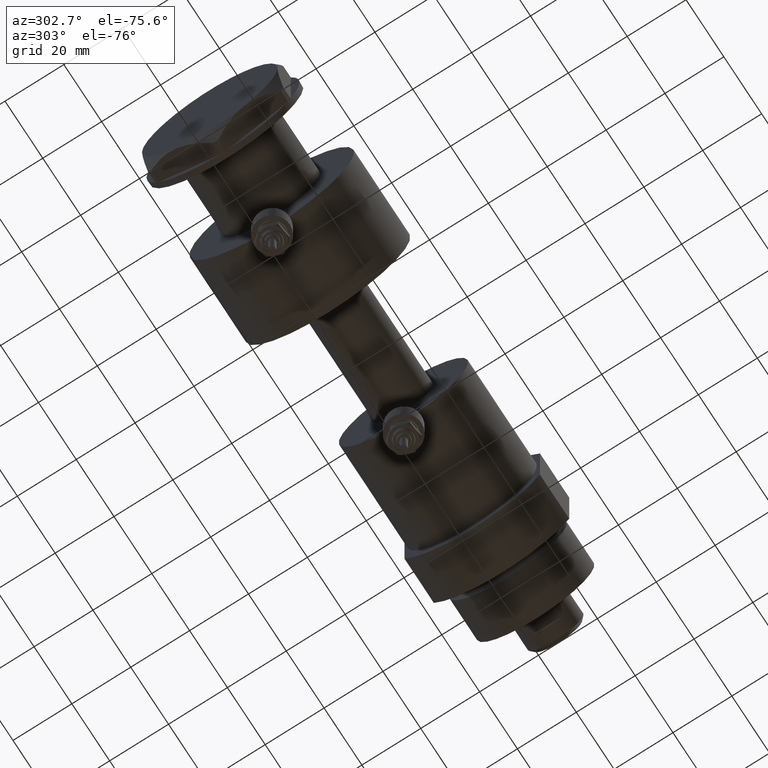
[diagram: clean part render]
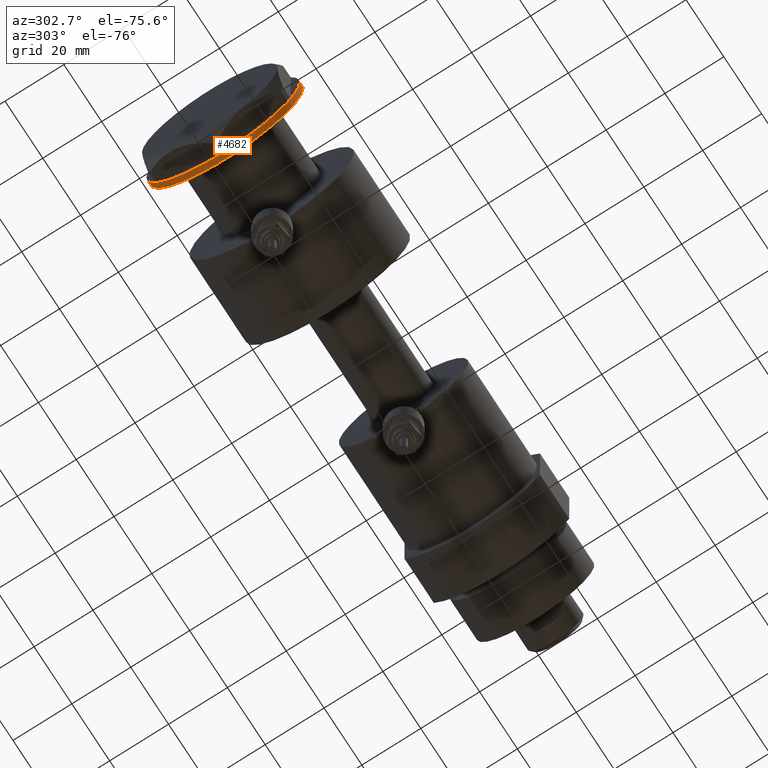
[diagram: same view with one face highlighted and labeled with its STEP entity id]
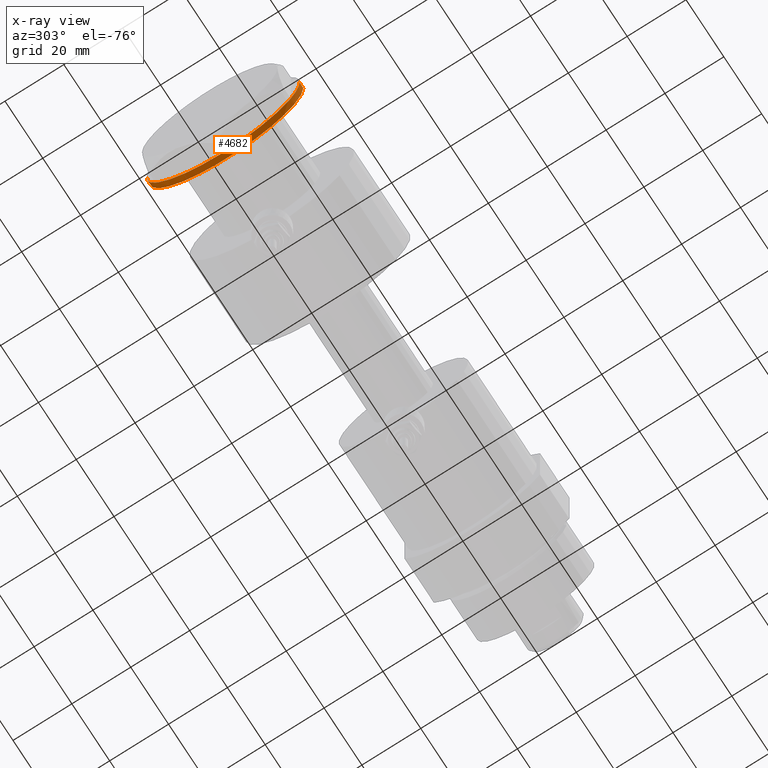
[diagram: x-ray of the same camera — body ghosted, the highlighted face saturated]
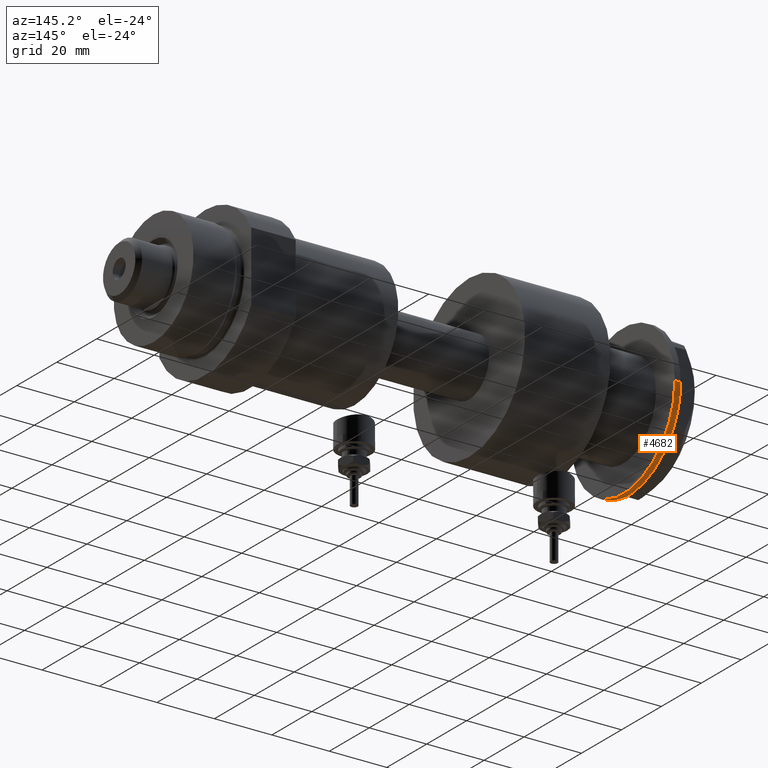
[diagram: same view with one face highlighted and labeled with its STEP entity id]
A machine part, auxiliary view. The second image highlights one B-rep face of the part: STEP entity #4682.
The next image is the same camera in x-ray: the body ghosted, the highlighted face saturated — about 0% of this face is hidden behind the body in this view.
A second angle (auxiliary view) of the same face is appended — the face is thin or edge-on in the first view.
In plain terms, the highlighted cylindrical surface (partial cylindrical patch) has radius 26 mm, axis along (-1, -0, 0).
Its self-contained STEP definition (entity closure, byte-faithful):
#25 = EDGE_CURVE ( 'NONE', #1889, #3312, #2389, .T. ) ;
#57 = CARTESIAN_POINT ( 'NONE',  ( 22.56942594318081063, 12.90986591935732442, 0.000000000000000000 ) ) ;
#61 = DIRECTION ( 'NONE',  ( -1.000000000000000000, 0.000000000000000000, 0.000000000000000000 ) ) ;
#151 = FACE_OUTER_BOUND ( 'NONE', #932, .T. ) ;
#178 = DIRECTION ( 'NONE',  ( 0.000000000000000000, 0.000000000000000000, -1.000000000000000000 ) ) ;
#201 = ORIENTED_EDGE ( 'NONE', *, *, #4127, .T. ) ;
#214 = CARTESIAN_POINT ( 'NONE',  ( 26.00000000000000355, 0.000000000000000000, 0.000000000000000000 ) ) ;
#220 = DIRECTION ( 'NONE',  ( 0.000000000000000000, 0.000000000000000000, -1.000000000000000000 ) ) ;
#248 = AXIS2_PLACEMENT_3D ( 'NONE', #3297, #4860, #1041 ) ;
#285 = DIRECTION ( 'NONE',  ( 0.000000000000000000, 0.000000000000000000, -1.000000000000000000 ) ) ;
#357 = VERTEX_POINT ( 'NONE', #214 ) ;
#379 = CARTESIAN_POINT ( 'NONE',  ( -22.99999999999999289, 12.12435565298215856, 0.000000000000000000 ) ) ;
#410 = EDGE_CURVE ( 'NONE', #2438, #357, #894, .T. ) ;
#466 = EDGE_CURVE ( 'NONE', #2988, #4886, #3332, .T. ) ;
#523 = VERTEX_POINT ( 'NONE', #1468 ) ;
#605 = DIRECTION ( 'NONE',  ( -1.000000000000000000, 0.000000000000000000, 0.000000000000000000 ) ) ;
#639 = DIRECTION ( 'NONE',  ( 0.000000000000000000, 0.000000000000000000, -1.000000000000000000 ) ) ;
#804 = CARTESIAN_POINT ( 'NONE',  ( -0.3132930502240048320, 25.99811238272273783, 0.000000000000000000 ) ) ;
#877 = ORIENTED_EDGE ( 'NONE', *, *, #3717, .T. ) ;
#894 = CIRCLE ( 'NONE', #5044, 26.00000000000000355 ) ;
#932 = EDGE_LOOP ( 'NONE', ( #2900, #1094, #4493, #3663, #877, #3729, #3853, #4431, #2490, #4156, #3003, #201, #4442, #3745, #2974, #1471 ) ) ;
#1008 = VERTEX_POINT ( 'NONE', #4181 ) ;
#1041 = DIRECTION ( 'NONE',  ( -1.000000000000000000, 0.000000000000000000, 0.000000000000000000 ) ) ;
#1043 = DIRECTION ( 'NONE',  ( -1.000000000000000000, 0.000000000000000000, 0.000000000000000000 ) ) ;
#1094 = ORIENTED_EDGE ( 'NONE', *, *, #2689, .T. ) ;
#1145 = DIRECTION ( 'NONE',  ( 0.000000000000000000, 0.000000000000000000, -1.000000000000000000 ) ) ;
#1153 = CARTESIAN_POINT ( 'NONE',  ( 0.000000000000000000, 0.000000000000000000, 0.000000000000000000 ) ) ;
#1177 = CARTESIAN_POINT ( 'NONE',  ( 26.00000000000000355, 0.000000000000000000, -2.000000000000000000 ) ) ;
#1222 = AXIS2_PLACEMENT_3D ( 'NONE', #3040, #1145, #4197 ) ;
#1337 = AXIS2_PLACEMENT_3D ( 'NONE', #2907, #1743, #2500 ) ;
#1394 = AXIS2_PLACEMENT_3D ( 'NONE', #3733, #220, #2171 ) ;
#1430 = CIRCLE ( 'NONE', #2384, 26.00000000000000355 ) ;
#1468 = CARTESIAN_POINT ( 'NONE',  ( -26.00000000000000355, 3.184081677783118585E-15, 0.000000000000000000 ) ) ;
#1471 = ORIENTED_EDGE ( 'NONE', *, *, #4042, .F. ) ;
#1661 = CIRCLE ( 'NONE', #3046, 26.00000000000000355 ) ;
#1743 = DIRECTION ( 'NONE',  ( 0.000000000000000000, 0.000000000000000000, -1.000000000000000000 ) ) ;
#1744 = VERTEX_POINT ( 'NONE', #1810 ) ;
#1810 = CARTESIAN_POINT ( 'NONE',  ( 0.3132930502238189252, 25.99811238272274139, 0.000000000000000000 ) ) ;
#1845 = EDGE_CURVE ( 'NONE', #3312, #2438, #2849, .T. ) ;
#1889 = VERTEX_POINT ( 'NONE', #2314 ) ;
#1910 = CARTESIAN_POINT ( 'NONE',  ( -22.67167229899245839, 12.72773645103865370, 0.000000000000000000 ) ) ;
#1948 = CARTESIAN_POINT ( 'NONE',  ( -0.3132930502240048320, 25.99811238272273783, 0.000000000000000000 ) ) ;
#1978 = CARTESIAN_POINT ( 'NONE',  ( -22.35837924876889460, 13.27037593168409835, 0.000000000000000000 ) ) ;
#1983 = VECTOR ( 'NONE', #3889, 1000.000000000000000 ) ;
#2117 = VECTOR ( 'NONE', #4226, 1000.000000000000000 ) ;
#2128 = DIRECTION ( 'NONE',  ( -0.000000000000000000, -0.000000000000000000, 1.000000000000000000 ) ) ;
#2171 = DIRECTION ( 'NONE',  ( -1.000000000000000000, 0.000000000000000000, 0.000000000000000000 ) ) ;
#2220 = EDGE_CURVE ( 'NONE', #4834, #1744, #2297, .T. ) ;
#2229 = AXIS2_PLACEMENT_3D ( 'NONE', #4187, #2667, #2950 ) ;
#2297 = B_SPLINE_CURVE_WITH_KNOTS ( 'NONE', 3,
 ( #1948, #4284, #3076, #3865 ),
 .UNSPECIFIED., .F., .F.,
 ( 4, 4 ),
 ( 0.000000000000000000, 1.000000000000000000 ),
 .UNSPECIFIED. ) ;
#2314 = CARTESIAN_POINT ( 'NONE',  ( 22.35837924876909710, 13.27037593168376084, 0.000000000000000000 ) ) ;
#2343 = CARTESIAN_POINT ( 'NONE',  ( 22.46498481720466245, 13.09076325594771006, 0.000000000000000000 ) ) ;
#2380 = CARTESIAN_POINT ( 'NONE',  ( 21.99999999999987210, 13.85640646055121827, 0.000000000000000000 ) ) ;
#2384 = AXIS2_PLACEMENT_3D ( 'NONE', #1153, #285, #3054 ) ;
#2389 = B_SPLINE_CURVE_WITH_KNOTS ( 'NONE', 3,
 ( #3094, #2343, #57, #3571 ),
 .UNSPECIFIED., .F., .F.,
 ( 4, 4 ),
 ( 0.000000000000000000, 1.000000000000000000 ),
 .UNSPECIFIED. ) ;
#2394 = DIRECTION ( 'NONE',  ( 0.000000000000000000, 0.000000000000000000, -1.000000000000000000 ) ) ;
#2411 = VERTEX_POINT ( 'NONE', #3536 ) ;
#2438 = VERTEX_POINT ( 'NONE', #3604 ) ;
#2490 = ORIENTED_EDGE ( 'NONE', *, *, #2220, .T. ) ;
#2500 = DIRECTION ( 'NONE',  ( -1.000000000000000000, 0.000000000000000000, 0.000000000000000000 ) ) ;
#2516 = CARTESIAN_POINT ( 'NONE',  ( 0.000000000000000000, 0.000000000000000000, 0.000000000000000000 ) ) ;
#2548 = CARTESIAN_POINT ( 'NONE',  ( -26.00000000000000355, 3.184081677783118585E-15, -2.000000000000000000 ) ) ;
#2588 = EDGE_CURVE ( 'NONE', #523, #4050, #3512, .T. ) ;
#2667 = DIRECTION ( 'NONE',  ( 0.000000000000000000, 0.000000000000000000, -1.000000000000000000 ) ) ;
#2689 = EDGE_CURVE ( 'NONE', #2988, #523, #3457, .T. ) ;
#2704 = CARTESIAN_POINT ( 'NONE',  ( -0.9999999999999089617, 25.98076211353316367, 0.000000000000000000 ) ) ;
#2705 = AXIS2_PLACEMENT_3D ( 'NONE', #4286, #2394, #61 ) ;
#2709 = CARTESIAN_POINT ( 'NONE',  ( -22.00000000000008171, 13.85640646055089498, 0.000000000000000000 ) ) ;
#2792 = VERTEX_POINT ( 'NONE', #2709 ) ;
#2849 = CIRCLE ( 'NONE', #4244, 26.00000000000000355 ) ;
#2869 = EDGE_CURVE ( 'NONE', #4050, #2411, #4268, .T. ) ;
#2900 = ORIENTED_EDGE ( 'NONE', *, *, #466, .F. ) ;
#2907 = CARTESIAN_POINT ( 'NONE',  ( 0.000000000000000000, 0.000000000000000000, 0.000000000000000000 ) ) ;
#2950 = DIRECTION ( 'NONE',  ( -1.000000000000000000, 0.000000000000000000, 0.000000000000000000 ) ) ;
#2969 = AXIS2_PLACEMENT_3D ( 'NONE', #4422, #2128, #4495 ) ;
#2974 = ORIENTED_EDGE ( 'NONE', *, *, #410, .T. ) ;
#2988 = VERTEX_POINT ( 'NONE', #2548 ) ;
#3003 = ORIENTED_EDGE ( 'NONE', *, *, #4071, .T. ) ;
#3036 = EDGE_CURVE ( 'NONE', #2792, #4425, #4018, .T. ) ;
#3040 = CARTESIAN_POINT ( 'NONE',  ( 0.000000000000000000, 0.000000000000000000, -2.000000000000000000 ) ) ;
#3046 = AXIS2_PLACEMENT_3D ( 'NONE', #2516, #4029, #3231 ) ;
#3054 = DIRECTION ( 'NONE',  ( -1.000000000000000000, 0.000000000000000000, 0.000000000000000000 ) ) ;
#3076 = CARTESIAN_POINT ( 'NONE',  ( 0.1044411259763403238, 26.00062917530480888, 0.000000000000000000 ) ) ;
#3094 = CARTESIAN_POINT ( 'NONE',  ( 22.35837924876909710, 13.27037593168376084, 0.000000000000000000 ) ) ;
#3127 = EDGE_CURVE ( 'NONE', #1008, #2792, #4820, .T. ) ;
#3211 = CARTESIAN_POINT ( 'NONE',  ( 0.9999999999999297229, 25.98076211353316722, 0.000000000000000000 ) ) ;
#3231 = DIRECTION ( 'NONE',  ( -1.000000000000000000, 0.000000000000000000, 0.000000000000000000 ) ) ;
#3297 = CARTESIAN_POINT ( 'NONE',  ( 0.000000000000000000, 0.000000000000000000, 0.000000000000000000 ) ) ;
#3312 = VERTEX_POINT ( 'NONE', #3494 ) ;
#3326 = B_SPLINE_CURVE_WITH_KNOTS ( 'NONE', 3,
 ( #1910, #3950, #3468, #1978 ),
 .UNSPECIFIED., .F., .F.,
 ( 4, 4 ),
 ( 0.000000000000000000, 1.000000000000000000 ),
 .UNSPECIFIED. ) ;
#3332 = CIRCLE ( 'NONE', #1222, 26.00000000000000355 ) ;
#3457 = LINE ( 'NONE', #5013, #2117 ) ;
#3458 = LINE ( 'NONE', #1177, #1983 ) ;
#3468 = CARTESIAN_POINT ( 'NONE',  ( -22.46498481720463758, 13.09076325594775092, 0.000000000000000000 ) ) ;
#3494 = CARTESIAN_POINT ( 'NONE',  ( 22.67167229899214220, 12.72773645103922036, 0.000000000000000000 ) ) ;
#3496 = EDGE_CURVE ( 'NONE', #4425, #4834, #4025, .T. ) ;
#3512 = CIRCLE ( 'NONE', #1394, 26.00000000000000355 ) ;
#3536 = CARTESIAN_POINT ( 'NONE',  ( -22.67167229899245839, 12.72773645103865370, 0.000000000000000000 ) ) ;
#3571 = CARTESIAN_POINT ( 'NONE',  ( 22.67167229899214220, 12.72773645103922036, 0.000000000000000000 ) ) ;
#3604 = CARTESIAN_POINT ( 'NONE',  ( 22.99999999999982592, 12.12435565298247653, 0.000000000000000000 ) ) ;
#3663 = ORIENTED_EDGE ( 'NONE', *, *, #2869, .T. ) ;
#3669 = CARTESIAN_POINT ( 'NONE',  ( 0.000000000000000000, 0.000000000000000000, 0.000000000000000000 ) ) ;
#3717 = EDGE_CURVE ( 'NONE', #2411, #1008, #3326, .T. ) ;
#3729 = ORIENTED_EDGE ( 'NONE', *, *, #3127, .T. ) ;
#3733 = CARTESIAN_POINT ( 'NONE',  ( 0.000000000000000000, 0.000000000000000000, 0.000000000000000000 ) ) ;
#3745 = ORIENTED_EDGE ( 'NONE', *, *, #1845, .T. ) ;
#3768 = VERTEX_POINT ( 'NONE', #2380 ) ;
#3775 = DIRECTION ( 'NONE',  ( -1.000000000000000000, 0.000000000000000000, 0.000000000000000000 ) ) ;
#3804 = DIRECTION ( 'NONE',  ( 0.000000000000000000, 0.000000000000000000, -1.000000000000000000 ) ) ;
#3853 = ORIENTED_EDGE ( 'NONE', *, *, #3036, .T. ) ;
#3863 = CIRCLE ( 'NONE', #2229, 26.00000000000000355 ) ;
#3865 = CARTESIAN_POINT ( 'NONE',  ( 0.3132930502238189252, 25.99811238272274139, 0.000000000000000000 ) ) ;
#3889 = DIRECTION ( 'NONE',  ( -0.000000000000000000, -0.000000000000000000, 1.000000000000000000 ) ) ;
#3943 = EDGE_CURVE ( 'NONE', #1744, #4391, #1661, .T. ) ;
#3950 = CARTESIAN_POINT ( 'NONE',  ( -22.56942594318095630, 12.90986591935706329, 0.000000000000000000 ) ) ;
#4018 = CIRCLE ( 'NONE', #1337, 26.00000000000000355 ) ;
#4025 = CIRCLE ( 'NONE', #4114, 26.00000000000000355 ) ;
#4029 = DIRECTION ( 'NONE',  ( 0.000000000000000000, 0.000000000000000000, -1.000000000000000000 ) ) ;
#4042 = EDGE_CURVE ( 'NONE', #4886, #357, #3458, .T. ) ;
#4050 = VERTEX_POINT ( 'NONE', #379 ) ;
#4071 = EDGE_CURVE ( 'NONE', #4391, #3768, #1430, .T. ) ;
#4114 = AXIS2_PLACEMENT_3D ( 'NONE', #3669, #178, #605 ) ;
#4127 = EDGE_CURVE ( 'NONE', #3768, #1889, #3863, .T. ) ;
#4156 = ORIENTED_EDGE ( 'NONE', *, *, #3943, .T. ) ;
#4181 = CARTESIAN_POINT ( 'NONE',  ( -22.35837924876889460, 13.27037593168409835, 0.000000000000000000 ) ) ;
#4187 = CARTESIAN_POINT ( 'NONE',  ( 0.000000000000000000, 0.000000000000000000, 0.000000000000000000 ) ) ;
#4197 = DIRECTION ( 'NONE',  ( -1.000000000000000000, 0.000000000000000000, 0.000000000000000000 ) ) ;
#4226 = DIRECTION ( 'NONE',  ( -0.000000000000000000, -0.000000000000000000, 1.000000000000000000 ) ) ;
#4244 = AXIS2_PLACEMENT_3D ( 'NONE', #4598, #3804, #3775 ) ;
#4268 = CIRCLE ( 'NONE', #2705, 26.00000000000000355 ) ;
#4284 = CARTESIAN_POINT ( 'NONE',  ( -0.1044411259765276462, 26.00062917530480888, 0.000000000000000000 ) ) ;
#4286 = CARTESIAN_POINT ( 'NONE',  ( 0.000000000000000000, 0.000000000000000000, 0.000000000000000000 ) ) ;
#4324 = CARTESIAN_POINT ( 'NONE',  ( 26.00000000000000355, 0.000000000000000000, -2.000000000000000000 ) ) ;
#4391 = VERTEX_POINT ( 'NONE', #3211 ) ;
#4422 = CARTESIAN_POINT ( 'NONE',  ( 0.000000000000000000, 0.000000000000000000, -2.000000000000000000 ) ) ;
#4425 = VERTEX_POINT ( 'NONE', #2704 ) ;
#4431 = ORIENTED_EDGE ( 'NONE', *, *, #3496, .T. ) ;
#4432 = CARTESIAN_POINT ( 'NONE',  ( 0.000000000000000000, 0.000000000000000000, 0.000000000000000000 ) ) ;
#4442 = ORIENTED_EDGE ( 'NONE', *, *, #25, .T. ) ;
#4493 = ORIENTED_EDGE ( 'NONE', *, *, #2588, .T. ) ;
#4495 = DIRECTION ( 'NONE',  ( 1.000000000000000000, 0.000000000000000000, 0.000000000000000000 ) ) ;
#4598 = CARTESIAN_POINT ( 'NONE',  ( 0.000000000000000000, 0.000000000000000000, 0.000000000000000000 ) ) ;
#4682 = ADVANCED_FACE ( 'NONE', ( #151 ), #4847, .T. ) ;
#4820 = CIRCLE ( 'NONE', #248, 26.00000000000000355 ) ;
#4834 = VERTEX_POINT ( 'NONE', #804 ) ;
#4847 = CYLINDRICAL_SURFACE ( 'NONE', #2969, 26.00000000000000355 ) ;
#4860 = DIRECTION ( 'NONE',  ( 0.000000000000000000, 0.000000000000000000, -1.000000000000000000 ) ) ;
#4886 = VERTEX_POINT ( 'NONE', #4324 ) ;
#5013 = CARTESIAN_POINT ( 'NONE',  ( -26.00000000000000355, 3.184081677783118585E-15, -2.000000000000000000 ) ) ;
#5044 = AXIS2_PLACEMENT_3D ( 'NONE', #4432, #639, #1043 ) ;